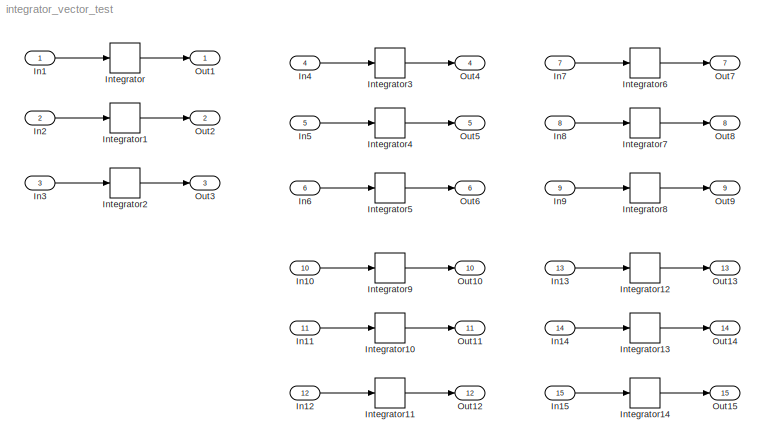
MODEL integrator_vector_test
KIND model
BLOCK [Inport] In1
  IconDisplay = Port number
  OutDataTypeStr = double
  PortDimensions = 3
  SID = 1
BLOCK [Inport] In10
  IconDisplay = Port number
  OutDataTypeStr = double
  Port = 10
  PortDimensions = 3
  SID = 10
BLOCK [Inport] In11
  IconDisplay = Port number
  OutDataTypeStr = double
  Port = 11
  PortDimensions = 3
  SID = 11
BLOCK [Inport] In12
  IconDisplay = Port number
  OutDataTypeStr = double
  Port = 12
  PortDimensions = 3
  SID = 12
BLOCK [Inport] In13
  IconDisplay = Port number
  OutDataTypeStr = double
  Port = 13
  PortDimensions = 1
  SID = 13
BLOCK [Inport] In14
  IconDisplay = Port number
  OutDataTypeStr = double
  Port = 14
  PortDimensions = 1
  SID = 14
BLOCK [Inport] In15
  IconDisplay = Port number
  OutDataTypeStr = double
  Port = 15
  PortDimensions = 1
  SID = 15
BLOCK [Inport] In2
  IconDisplay = Port number
  OutDataTypeStr = double
  Port = 2
  PortDimensions = 3
  SID = 2
BLOCK [Inport] In3
  IconDisplay = Port number
  OutDataTypeStr = double
  Port = 3
  PortDimensions = 3
  SID = 3
BLOCK [Inport] In4
  IconDisplay = Port number
  OutDataTypeStr = double
  Port = 4
  PortDimensions = 3
  SID = 4
BLOCK [Inport] In5
  IconDisplay = Port number
  OutDataTypeStr = double
  Port = 5
  PortDimensions = 3
  SID = 5
BLOCK [Inport] In6
  IconDisplay = Port number
  OutDataTypeStr = double
  Port = 6
  PortDimensions = 3
  SID = 6
BLOCK [Inport] In7
  IconDisplay = Port number
  OutDataTypeStr = double
  Port = 7
  PortDimensions = 1
  SID = 7
BLOCK [Inport] In8
  IconDisplay = Port number
  OutDataTypeStr = double
  Port = 8
  PortDimensions = 1
  SID = 8
BLOCK [Inport] In9
  IconDisplay = Port number
  OutDataTypeStr = double
  Port = 9
  PortDimensions = 1
  SID = 9
BLOCK [DiscreteIntegrator] Integrator
  ICPrevOutput = DiscIntNeverNeededParam
  ICPrevScaledInput = DiscIntNeverNeededParam
  Ports = [1, 1]
  SID = 16
  SampleTime = 1.0
BLOCK [DiscreteIntegrator] Integrator1
  ICPrevOutput = DiscIntNeverNeededParam
  ICPrevScaledInput = DiscIntNeverNeededParam
  Ports = [1, 1]
  SID = 17
  SampleTime = 1.0
BLOCK [DiscreteIntegrator] Integrator10
  ICPrevOutput = DiscIntNeverNeededParam
  ICPrevScaledInput = DiscIntNeverNeededParam
  InitialCondition = [-2 0 -2]
  Ports = [1, 1]
  SID = 18
  SampleTime = 1.0
  gainval = [2 5 1]
BLOCK [DiscreteIntegrator] Integrator11
  ICPrevOutput = DiscIntNeverNeededParam
  ICPrevScaledInput = DiscIntNeverNeededParam
  InitialCondition = [-2 0 -2]
  Ports = [1, 1]
  SID = 19
  SampleTime = 1.0
  gainval = [2 5 1]
BLOCK [DiscreteIntegrator] Integrator12
  ICPrevOutput = DiscIntNeverNeededParam
  ICPrevScaledInput = DiscIntNeverNeededParam
  InitialCondition = [-2 0 -2.5]
  Ports = [1, 1]
  SID = 20
  SampleTime = 1.0
  gainval = [2 3 5]
BLOCK [DiscreteIntegrator] Integrator13
  ICPrevOutput = DiscIntNeverNeededParam
  ICPrevScaledInput = DiscIntNeverNeededParam
  InitialCondition = [-2 0 -2]
  Ports = [1, 1]
  SID = 21
  SampleTime = 1.0
  gainval = [2 5 1]
BLOCK [DiscreteIntegrator] Integrator14
  ICPrevOutput = DiscIntNeverNeededParam
  ICPrevScaledInput = DiscIntNeverNeededParam
  InitialCondition = [-2 0 -25]
  Ports = [1, 1]
  SID = 22
  SampleTime = 1.0
  gainval = [2 5 1]
BLOCK [DiscreteIntegrator] Integrator2
  ICPrevOutput = DiscIntNeverNeededParam
  ICPrevScaledInput = DiscIntNeverNeededParam
  Ports = [1, 1]
  SID = 23
  SampleTime = 1.0
BLOCK [DiscreteIntegrator] Integrator3
  ICPrevOutput = DiscIntNeverNeededParam
  ICPrevScaledInput = DiscIntNeverNeededParam
  Ports = [1, 1]
  SID = 24
  SampleTime = 1.0
  gainval = [2 3 5]
BLOCK [DiscreteIntegrator] Integrator4
  ICPrevOutput = DiscIntNeverNeededParam
  ICPrevScaledInput = DiscIntNeverNeededParam
  Ports = [1, 1]
  SID = 25
  SampleTime = 1.0
  gainval = [2 5 1]
BLOCK [DiscreteIntegrator] Integrator5
  ICPrevOutput = DiscIntNeverNeededParam
  ICPrevScaledInput = DiscIntNeverNeededParam
  Ports = [1, 1]
  SID = 26
  SampleTime = 1.0
  gainval = [2 5 0.1]
BLOCK [DiscreteIntegrator] Integrator6
  ICPrevOutput = DiscIntNeverNeededParam
  ICPrevScaledInput = DiscIntNeverNeededParam
  Ports = [1, 1]
  SID = 27
  SampleTime = 1.0
  gainval = [2 3 5]
BLOCK [DiscreteIntegrator] Integrator7
  ICPrevOutput = DiscIntNeverNeededParam
  ICPrevScaledInput = DiscIntNeverNeededParam
  Ports = [1, 1]
  SID = 28
  SampleTime = 1.0
  gainval = [2 5 1]
BLOCK [DiscreteIntegrator] Integrator8
  ICPrevOutput = DiscIntNeverNeededParam
  ICPrevScaledInput = DiscIntNeverNeededParam
  Ports = [1, 1]
  SID = 29
  SampleTime = 1.0
  gainval = [2 5 1]
BLOCK [DiscreteIntegrator] Integrator9
  ICPrevOutput = DiscIntNeverNeededParam
  ICPrevScaledInput = DiscIntNeverNeededParam
  InitialCondition = [-2 0 -2.5]
  Ports = [1, 1]
  SID = 30
  SampleTime = 1.0
  gainval = [2 3 5]
BLOCK [Outport] Out1
  IconDisplay = Port number
  SID = 31
BLOCK [Outport] Out10
  IconDisplay = Port number
  Port = 10
  SID = 40
BLOCK [Outport] Out11
  IconDisplay = Port number
  Port = 11
  SID = 41
BLOCK [Outport] Out12
  IconDisplay = Port number
  Port = 12
  SID = 42
BLOCK [Outport] Out13
  IconDisplay = Port number
  Port = 13
  SID = 43
BLOCK [Outport] Out14
  IconDisplay = Port number
  Port = 14
  SID = 44
BLOCK [Outport] Out15
  IconDisplay = Port number
  Port = 15
  SID = 45
BLOCK [Outport] Out2
  IconDisplay = Port number
  Port = 2
  SID = 32
BLOCK [Outport] Out3
  IconDisplay = Port number
  Port = 3
  SID = 33
BLOCK [Outport] Out4
  IconDisplay = Port number
  Port = 4
  SID = 34
BLOCK [Outport] Out5
  IconDisplay = Port number
  Port = 5
  SID = 35
BLOCK [Outport] Out6
  IconDisplay = Port number
  Port = 6
  SID = 36
BLOCK [Outport] Out7
  IconDisplay = Port number
  Port = 7
  SID = 37
BLOCK [Outport] Out8
  IconDisplay = Port number
  Port = 8
  SID = 38
BLOCK [Outport] Out9
  IconDisplay = Port number
  Port = 9
  SID = 39
LINE In10:1 -> Integrator9:1
LINE In11:1 -> Integrator10:1
LINE In12:1 -> Integrator11:1
LINE In13:1 -> Integrator12:1
LINE In14:1 -> Integrator13:1
LINE In15:1 -> Integrator14:1
LINE In1:1 -> Integrator:1
LINE In2:1 -> Integrator1:1
LINE In3:1 -> Integrator2:1
LINE In4:1 -> Integrator3:1
LINE In5:1 -> Integrator4:1
LINE In6:1 -> Integrator5:1
LINE In7:1 -> Integrator6:1
LINE In8:1 -> Integrator7:1
LINE In9:1 -> Integrator8:1
LINE Integrator10:1 -> Out11:1
LINE Integrator11:1 -> Out12:1
LINE Integrator12:1 -> Out13:1
LINE Integrator13:1 -> Out14:1
LINE Integrator14:1 -> Out15:1
LINE Integrator1:1 -> Out2:1
LINE Integrator2:1 -> Out3:1
LINE Integrator3:1 -> Out4:1
LINE Integrator4:1 -> Out5:1
LINE Integrator5:1 -> Out6:1
LINE Integrator6:1 -> Out7:1
LINE Integrator7:1 -> Out8:1
LINE Integrator8:1 -> Out9:1
LINE Integrator9:1 -> Out10:1
LINE Integrator:1 -> Out1:1
